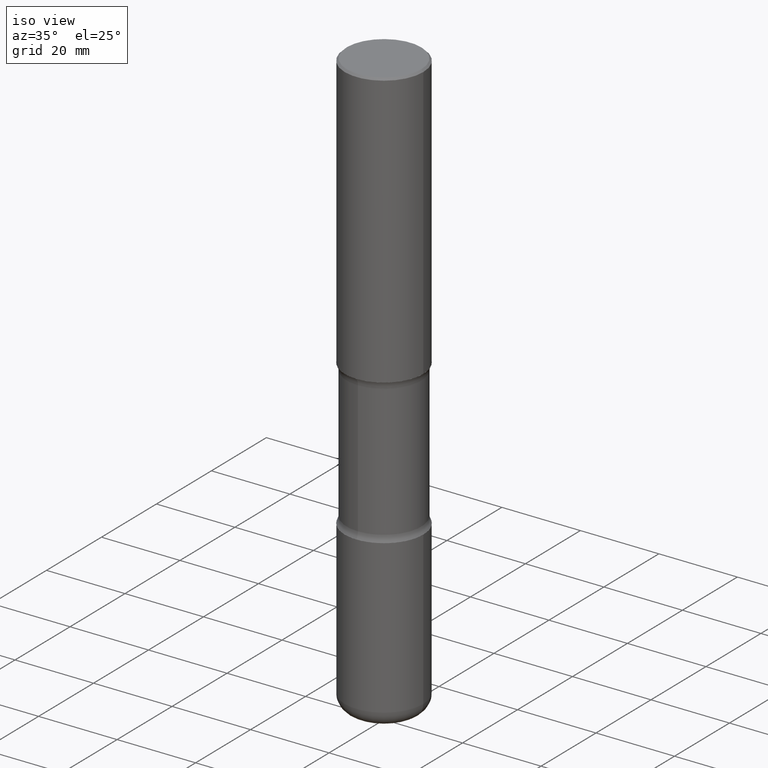
[diagram: clean part render]
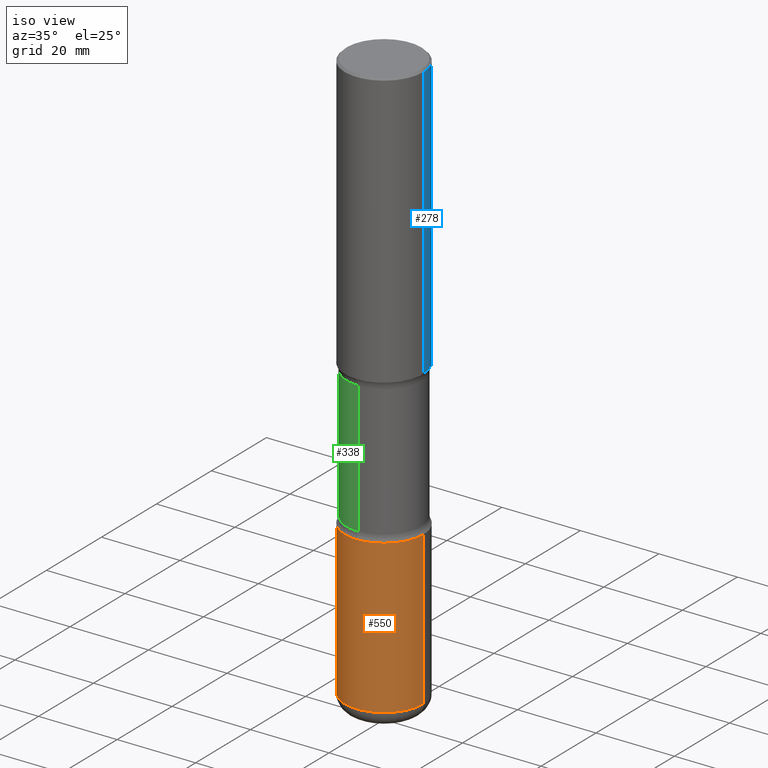
[diagram: same view with three faces highlighted in distinct colors, each labeled with its STEP entity id]
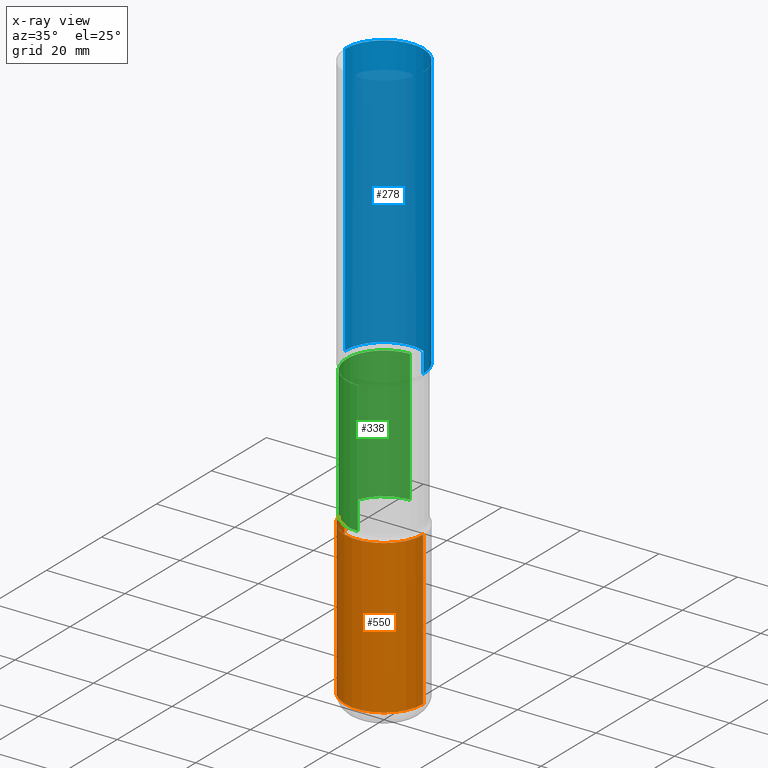
[diagram: x-ray of the same camera — body ghosted, the three highlighted faces saturated]
A machine part, iso view with three faces highlighted in distinct colors.
The next image is the same camera in x-ray (body ghosted, the three faces saturated) — at least one of them is partly hidden behind the body in this view.
Their STEP definitions:

[orange] entity #550 — the highlighted cylindrical surface (partial cylindrical patch) has radius 10 mm, axis along (-0, 0, 1).
#10 = DIRECTION ( 'NONE',  ( 1.000000000000000000, -6.982962677686269866E-15, 0.000000000000000000 ) ) ;
#17 = FACE_OUTER_BOUND ( 'NONE', #186, .T. ) ;
#33 = DIRECTION ( 'NONE',  ( -2.445468806185136597E-29, 3.491481338843145583E-15, 1.000000000000000000 ) ) ;
#47 = VERTEX_POINT ( 'NONE', #531 ) ;
#54 = CARTESIAN_POINT ( 'NONE',  ( 0.000000000000000000, 0.000000000000000000, 0.000000000000000000 ) ) ;
#61 = EDGE_CURVE ( 'NONE', #560, #47, #325, .T. ) ;
#73 = CARTESIAN_POINT ( 'NONE',  ( -0.3937000000000003830, 2.797406750687517153E-15, -1.936584745033358137E-29 ) ) ;
#76 = VECTOR ( 'NONE', #364, 39.37007874015748143 ) ;
#134 = CARTESIAN_POINT ( 'NONE',  ( -0.3937000000000004385, -1.727162798498288305E-14, -5.748000000000000220 ) ) ;
#158 = CIRCLE ( 'NONE', #248, 0.3937000000000002720 ) ;
#168 = VERTEX_POINT ( 'NONE', #460 ) ;
#186 = EDGE_LOOP ( 'NONE', ( #299, #207, #516, #210 ) ) ;
#207 = ORIENTED_EDGE ( 'NONE', *, *, #558, .T. ) ;
#209 = CARTESIAN_POINT ( 'NONE',  ( 0.3937000000000003830, -2.749192406205085978E-15, 1.919750796630861853E-29 ) ) ;
#210 = ORIENTED_EDGE ( 'NONE', *, *, #213, .F. ) ;
#213 = EDGE_CURVE ( 'NONE', #47, #168, #158, .T. ) ;
#248 = AXIS2_PLACEMENT_3D ( 'NONE', #414, #33, #374 ) ;
#260 = VERTEX_POINT ( 'NONE', #549 ) ;
#269 = DIRECTION ( 'NONE',  ( -2.445468806185136597E-29, 3.491481338843145583E-15, 1.000000000000000000 ) ) ;
#273 = DIRECTION ( 'NONE',  ( -2.445468806185136597E-29, 3.491481338843145583E-15, 1.000000000000000000 ) ) ;
#282 = CARTESIAN_POINT ( 'NONE',  ( 1.405655469795216423E-28, -2.006903473567040335E-14, -5.748000000000000220 ) ) ;
#299 = ORIENTED_EDGE ( 'NONE', *, *, #61, .F. ) ;
#302 = AXIS2_PLACEMENT_3D ( 'NONE', #54, #269, #547 ) ;
#322 = AXIS2_PLACEMENT_3D ( 'NONE', #282, #273, #10 ) ;
#325 = LINE ( 'NONE', #73, #76 ) ;
#330 = CYLINDRICAL_SURFACE ( 'NONE', #302, 0.3937000000000003830 ) ;
#364 = DIRECTION ( 'NONE',  ( -2.445468806185136877E-29, 3.491481338843145188E-15, 1.000000000000000000 ) ) ;
#374 = DIRECTION ( 'NONE',  ( 1.000000000000000000, -6.982962677686269077E-15, 0.000000000000000000 ) ) ;
#379 = EDGE_CURVE ( 'NONE', #260, #168, #521, .T. ) ;
#391 = DIRECTION ( 'NONE',  ( -2.445468806185136877E-29, 3.491481338843145188E-15, 1.000000000000000000 ) ) ;
#414 = CARTESIAN_POINT ( 'NONE',  ( 1.030178189293550378E-28, -1.470821428801063089E-14, -4.212599999999998346 ) ) ;
#460 = CARTESIAN_POINT ( 'NONE',  ( 0.3937000000000002720, -1.745740669421571411E-14, -4.212599999999998346 ) ) ;
#475 = VECTOR ( 'NONE', #391, 39.37007874015748143 ) ;
#516 = ORIENTED_EDGE ( 'NONE', *, *, #379, .T. ) ;
#521 = LINE ( 'NONE', #209, #475 ) ;
#531 = CARTESIAN_POINT ( 'NONE',  ( -0.3937000000000002720, -1.459121776115299839E-14, -4.212599999999998346 ) ) ;
#547 = DIRECTION ( 'NONE',  ( 1.000000000000000000, -6.982962677686266711E-15, 4.876176775795935793E-29 ) ) ;
#549 = CARTESIAN_POINT ( 'NONE',  ( 0.3937000000000004385, -2.281822714187548973E-14, -5.748000000000000220 ) ) ;
#550 = ADVANCED_FACE ( 'NONE', ( #17 ), #330, .T. ) ;
#556 = CIRCLE ( 'NONE', #322, 0.3937000000000004940 ) ;
#558 = EDGE_CURVE ( 'NONE', #560, #260, #556, .T. ) ;
#560 = VERTEX_POINT ( 'NONE', #134 ) ;

[blue] entity #278 — the highlighted cylindrical surface (partial cylindrical patch) has radius 10 mm, axis along (-0, 0, 1).
#7 = AXIS2_PLACEMENT_3D ( 'NONE', #165, #336, #126 ) ;
#16 = VERTEX_POINT ( 'NONE', #71 ) ;
#31 = DIRECTION ( 'NONE',  ( 1.000000000000000000, -6.982962677686266711E-15, 4.876176775795935793E-29 ) ) ;
#35 = DIRECTION ( 'NONE',  ( -2.445468806185136877E-29, 3.491481338843145188E-15, 1.000000000000000000 ) ) ;
#45 = CIRCLE ( 'NONE', #354, 0.3937000000000002164 ) ;
#71 = CARTESIAN_POINT ( 'NONE',  ( -0.3936999999999999389, 2.679362779428219524E-15, -0.02000000000000010103 ) ) ;
#78 = CARTESIAN_POINT ( 'NONE',  ( 0.000000000000000000, 0.000000000000000000, 0.000000000000000000 ) ) ;
#116 = EDGE_CURVE ( 'NONE', #544, #241, #45, .T. ) ;
#126 = DIRECTION ( 'NONE',  ( 1.000000000000000000, -6.982962677686266711E-15, 0.000000000000000000 ) ) ;
#135 = DIRECTION ( 'NONE',  ( -2.445468806185136877E-29, 3.491481338843145188E-15, 1.000000000000000000 ) ) ;
#147 = ORIENTED_EDGE ( 'NONE', *, *, #341, .F. ) ;
#160 = FACE_OUTER_BOUND ( 'NONE', #461, .T. ) ;
#162 = CARTESIAN_POINT ( 'NONE',  ( 6.739467482965614869E-29, -9.622173421717819657E-15, -2.755899999999998240 ) ) ;
#165 = CARTESIAN_POINT ( 'NONE',  ( 4.890937612370298557E-31, -6.982962677686327354E-17, -0.02000000000000010103 ) ) ;
#182 = EDGE_CURVE ( 'NONE', #241, #16, #298, .T. ) ;
#195 = VECTOR ( 'NONE', #135, 39.37007874015748143 ) ;
#234 = CARTESIAN_POINT ( 'NONE',  ( -0.3937000000000002720, -2.048594773559823141E-15, -2.755899999999998240 ) ) ;
#236 = EDGE_CURVE ( 'NONE', #292, #16, #495, .T. ) ;
#239 = DIRECTION ( 'NONE',  ( -2.445468806185136597E-29, 3.491481338843145583E-15, 1.000000000000000000 ) ) ;
#241 = VERTEX_POINT ( 'NONE', #234 ) ;
#278 = ADVANCED_FACE ( 'NONE', ( #160 ), #415, .T. ) ;
#292 = VERTEX_POINT ( 'NONE', #388 ) ;
#298 = LINE ( 'NONE', #335, #496 ) ;
#301 = CARTESIAN_POINT ( 'NONE',  ( 0.3937000000000002164, -1.237136582792290287E-14, -2.755899999999998240 ) ) ;
#315 = LINE ( 'NONE', #554, #195 ) ;
#335 = CARTESIAN_POINT ( 'NONE',  ( -0.3937000000000001054, 2.797406750687515181E-15, -1.936584745033357016E-29 ) ) ;
#336 = DIRECTION ( 'NONE',  ( -2.445468806185136597E-29, 3.491481338843145583E-15, 1.000000000000000000 ) ) ;
#341 = EDGE_CURVE ( 'NONE', #544, #292, #315, .T. ) ;
#354 = AXIS2_PLACEMENT_3D ( 'NONE', #162, #552, #413 ) ;
#358 = ORIENTED_EDGE ( 'NONE', *, *, #116, .T. ) ;
#388 = CARTESIAN_POINT ( 'NONE',  ( 0.3936999999999999389, -2.770807688499514945E-15, -0.02000000000000010103 ) ) ;
#392 = ORIENTED_EDGE ( 'NONE', *, *, #236, .F. ) ;
#413 = DIRECTION ( 'NONE',  ( 1.000000000000000000, -6.982962677686265133E-15, 0.000000000000000000 ) ) ;
#415 = CYLINDRICAL_SURFACE ( 'NONE', #504, 0.3937000000000001054 ) ;
#461 = EDGE_LOOP ( 'NONE', ( #358, #511, #392, #147 ) ) ;
#495 = CIRCLE ( 'NONE', #7, 0.3936999999999999389 ) ;
#496 = VECTOR ( 'NONE', #35, 39.37007874015748143 ) ;
#504 = AXIS2_PLACEMENT_3D ( 'NONE', #78, #239, #31 ) ;
#511 = ORIENTED_EDGE ( 'NONE', *, *, #182, .T. ) ;
#544 = VERTEX_POINT ( 'NONE', #301 ) ;
#552 = DIRECTION ( 'NONE',  ( -2.445468806185136597E-29, 3.491481338843145583E-15, 1.000000000000000000 ) ) ;
#554 = CARTESIAN_POINT ( 'NONE',  ( 0.3937000000000001054, -2.749192406205084005E-15, 1.919750796630860452E-29 ) ) ;

[green] entity #338 — the highlighted cylindrical surface (partial cylindrical patch) has radius 9.4996 mm, axis along (0, -0, -1).
#4 = DIRECTION ( 'NONE',  ( 2.499563752616943710E-29, -3.414014296659653741E-15, -1.000000000000000000 ) ) ;
#48 = LINE ( 'NONE', #479, #91 ) ;
#64 = EDGE_CURVE ( 'NONE', #373, #310, #485, .T. ) ;
#82 = AXIS2_PLACEMENT_3D ( 'NONE', #323, #492, #228 ) ;
#87 = DIRECTION ( 'NONE',  ( 2.499563752616943710E-29, -3.414014296659653741E-15, -1.000000000000000000 ) ) ;
#91 = VECTOR ( 'NONE', #140, 39.37007874015748143 ) ;
#100 = ORIENTED_EDGE ( 'NONE', *, *, #64, .F. ) ;
#113 = EDGE_CURVE ( 'NONE', #173, #373, #372, .T. ) ;
#121 = CARTESIAN_POINT ( 'NONE',  ( -2.633402156444536217E-15, -0.3740000000000101577, -2.823256588393413313 ) ) ;
#122 = ORIENTED_EDGE ( 'NONE', *, *, #536, .T. ) ;
#125 = CIRCLE ( 'NONE', #467, 0.3740000000000001656 ) ;
#131 = CARTESIAN_POINT ( 'NONE',  ( 2.611628041454766160E-15, 0.3739999999999856772, -4.145243411606584161 ) ) ;
#140 = DIRECTION ( 'NONE',  ( 2.499563752616943710E-29, -3.414014296659653741E-15, -1.000000000000000000 ) ) ;
#141 = AXIS2_PLACEMENT_3D ( 'NONE', #219, #87, #430 ) ;
#173 = VERTEX_POINT ( 'NONE', #121 ) ;
#218 = CARTESIAN_POINT ( 'NONE',  ( 6.829029461346524548E-29, -9.964976017815853586E-15, -2.823256588393414646 ) ) ;
#219 = CARTESIAN_POINT ( 'NONE',  ( 1.453329336974072664E-28, -2.048779909082575425E-14, -5.905499999999998195 ) ) ;
#223 = CARTESIAN_POINT ( 'NONE',  ( -2.633402156444500718E-15, -0.3740000000000146541, -4.145243411606582384 ) ) ;
#228 = DIRECTION ( 'NONE',  ( 6.982962677686266711E-15, 1.000000000000000000, -2.921762560068729411E-15 ) ) ;
#235 = VECTOR ( 'NONE', #543, 39.37007874015748143 ) ;
#307 = EDGE_LOOP ( 'NONE', ( #403, #122, #418, #100 ) ) ;
#310 = VERTEX_POINT ( 'NONE', #131 ) ;
#323 = CARTESIAN_POINT ( 'NONE',  ( 1.013341980608738414E-28, -1.447825793226129018E-14, -4.145243411606583273 ) ) ;
#338 = ADVANCED_FACE ( 'NONE', ( #518 ), #342, .T. ) ;
#339 = DIRECTION ( 'NONE',  ( 6.982962677686266711E-15, 1.000000000000000000, -2.921762560068729411E-15 ) ) ;
#342 = CYLINDRICAL_SURFACE ( 'NONE', #141, 0.3740000000000001656 ) ;
#345 = EDGE_CURVE ( 'NONE', #347, #310, #48, .T. ) ;
#347 = VERTEX_POINT ( 'NONE', #351 ) ;
#351 = CARTESIAN_POINT ( 'NONE',  ( 2.611628041454733028E-15, 0.3739999999999901736, -2.823256588393415534 ) ) ;
#372 = LINE ( 'NONE', #463, #235 ) ;
#373 = VERTEX_POINT ( 'NONE', #223 ) ;
#403 = ORIENTED_EDGE ( 'NONE', *, *, #113, .F. ) ;
#418 = ORIENTED_EDGE ( 'NONE', *, *, #345, .T. ) ;
#430 = DIRECTION ( 'NONE',  ( 6.982962677686266711E-15, 1.000000000000000000, -2.921762560068729411E-15 ) ) ;
#463 = CARTESIAN_POINT ( 'NONE',  ( -2.565826251166408560E-15, -0.3740000000000206493, -5.905499999999997307 ) ) ;
#467 = AXIS2_PLACEMENT_3D ( 'NONE', #218, #4, #339 ) ;
#479 = CARTESIAN_POINT ( 'NONE',  ( 2.611628041454809941E-15, 0.3739999999999796820, -5.905499999999999972 ) ) ;
#485 = CIRCLE ( 'NONE', #82, 0.3740000000000001656 ) ;
#492 = DIRECTION ( 'NONE',  ( 2.499563752616943710E-29, -3.414014296659653741E-15, -1.000000000000000000 ) ) ;
#518 = FACE_OUTER_BOUND ( 'NONE', #307, .T. ) ;
#536 = EDGE_CURVE ( 'NONE', #173, #347, #125, .T. ) ;
#543 = DIRECTION ( 'NONE',  ( 2.499563752616943710E-29, -3.414014296659653741E-15, -1.000000000000000000 ) ) ;